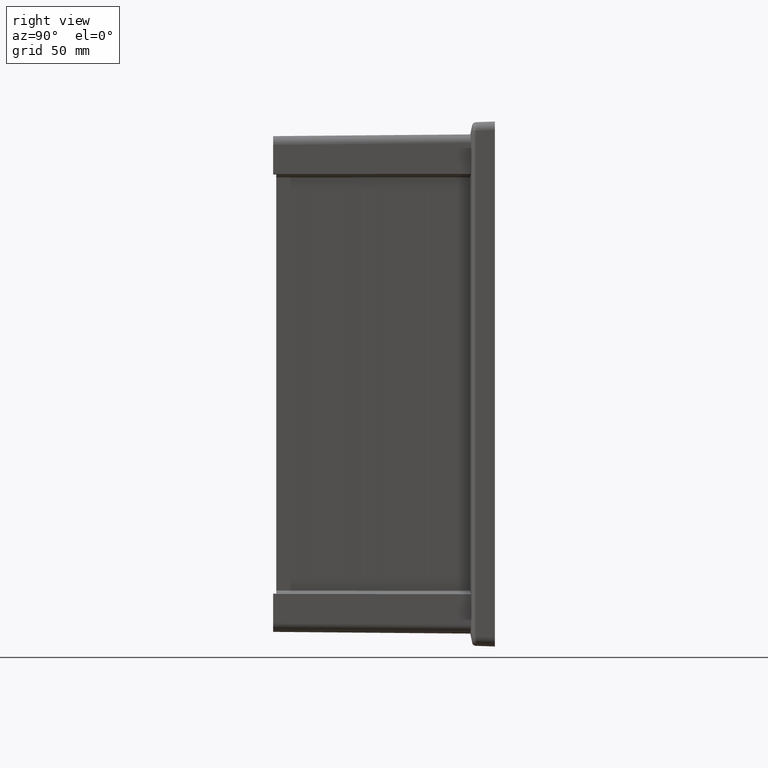
[diagram: clean part render]
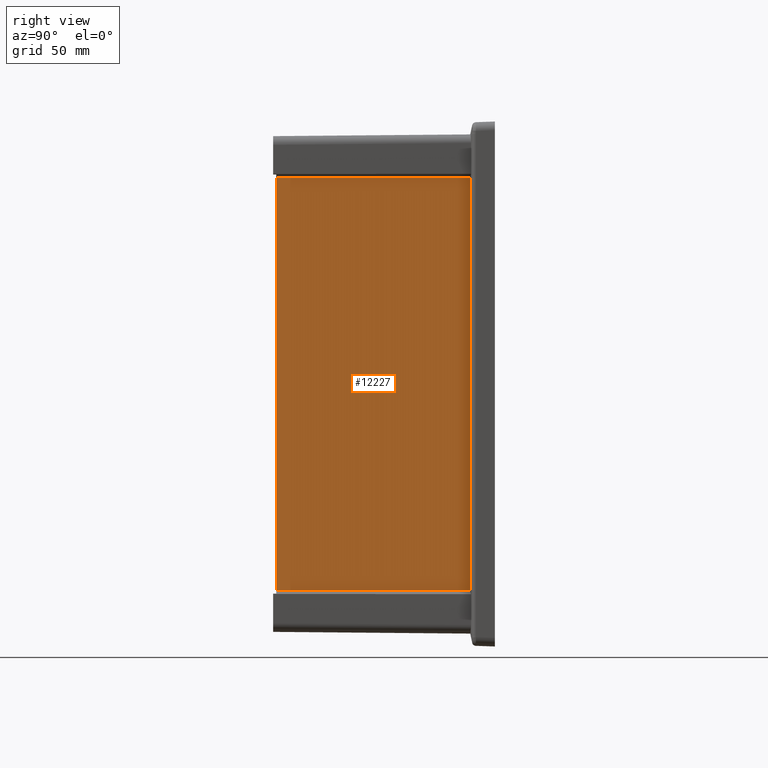
[diagram: same view with one face highlighted and labeled with its STEP entity id]
A machine part, right view. The second image highlights one B-rep face of the part: STEP entity #12227.
In plain terms, the highlighted planar face has unit normal (1, -0.0087, -0).
Its self-contained STEP definition (entity closure, byte-faithful):
#3159 = CARTESIAN_POINT ( 'NONE',  ( 130.9515572080079600, -15.70534670267410400, -130.9032146358694000 ) ) ;
#3160 = DIRECTION ( 'NONE',  ( 8.962543548058904900E-017, 1.905047440393214900E-017, 1.000000000000000000 ) ) ;
#3161 = VECTOR ( 'NONE', #3160, 1000.000000000000000 ) ;
#3162 = CARTESIAN_POINT ( 'NONE',  ( 130.9515572080079600, -15.70534670267410400, -156.0000000000000000 ) ) ;
#3163 = LINE ( 'NONE', #3162, #3161 ) ;
#3164 = CARTESIAN_POINT ( 'NONE',  ( 130.9515572080079800, -15.70534670267409700, 130.9064317102757100 ) ) ;
#3412 = DIRECTION ( 'NONE',  ( 0.008726531827788399500, 0.9999615024563482900, 0.0009171954542836336000 ) ) ;
#3413 = VECTOR ( 'NONE', #3412, 999.9999999999998900 ) ;
#3414 = CARTESIAN_POINT ( 'NONE',  ( 130.9492608274845200, -15.96848584704280900, 130.9061903509569300 ) ) ;
#3415 = LINE ( 'NONE', #3414, #3413 ) ;
#3416 = DIRECTION ( 'NONE',  ( 0.008726535498377261900, 0.9999619230641712000, 0.0000000000000000000 ) ) ;
#3417 = DIRECTION ( 'NONE',  ( 0.9999619230641713100, -0.008726535498377263600, -8.945577817748681000E-017 ) ) ;
#3418 = CARTESIAN_POINT ( 'NONE',  ( 130.9515572080079600, -15.70534670267410400, -156.0000000000000000 ) ) ;
#3419 = AXIS2_PLACEMENT_3D ( 'NONE', #3418, #3417, #3416 ) ;
#3420 = PLANE ( 'NONE',  #3419 ) ;
#3421 = FACE_OUTER_BOUND ( 'NONE', #12228, .T. ) ;
#3470 = DIRECTION ( 'NONE',  ( -0.008726531827788399500, -0.9999615024563482900, 0.0009171954542836153800 ) ) ;
#3471 = VECTOR ( 'NONE', #3470, 999.9999999999998900 ) ;
#3472 = CARTESIAN_POINT ( 'NONE',  ( 130.9517580810548600, -15.68232893138276100, -130.9032357484773900 ) ) ;
#3473 = LINE ( 'NONE', #3472, #3471 ) ;
#9155 = VERTEX_POINT ( 'NONE', #15994 ) ;
#9157 = EDGE_CURVE ( 'NONE', #9155, #9158, #15993, .T. ) ;
#9158 = VERTEX_POINT ( 'NONE', #15989 ) ;
#12053 = VERTEX_POINT ( 'NONE', #3164 ) ;
#12055 = EDGE_CURVE ( 'NONE', #12056, #12053, #3163, .T. ) ;
#12056 = VERTEX_POINT ( 'NONE', #3159 ) ;
#12227 = ADVANCED_FACE ( 'NONE', ( #3421 ), #3420, .T. ) ;
#12228 = EDGE_LOOP ( 'NONE', ( #12229, #12231, #12232, #12234 ) ) ;
#12229 = ORIENTED_EDGE ( 'NONE', *, *, #12230, .F. ) ;
#12230 = EDGE_CURVE ( 'NONE', #9158, #12053, #3415, .T. ) ;
#12231 = ORIENTED_EDGE ( 'NONE', *, *, #9157, .F. ) ;
#12232 = ORIENTED_EDGE ( 'NONE', *, *, #12233, .F. ) ;
#12233 = EDGE_CURVE ( 'NONE', #12056, #9155, #3473, .T. ) ;
#12234 = ORIENTED_EDGE ( 'NONE', *, *, #12055, .T. ) ;
#15989 = CARTESIAN_POINT ( 'NONE',  ( 129.8799445032697700, -138.5000000000000000, 130.7938006764429400 ) ) ;
#15990 = DIRECTION ( 'NONE',  ( 8.945918450911463900E-017, 0.0000000000000000000, 1.000000000000000000 ) ) ;
#15991 = VECTOR ( 'NONE', #15990, 1000.000000000000000 ) ;
#15992 = CARTESIAN_POINT ( 'NONE',  ( 129.8799445032697400, -138.5000000000000000, -156.0000000000000000 ) ) ;
#15993 = LINE ( 'NONE', #15992, #15991 ) ;
#15994 = CARTESIAN_POINT ( 'NONE',  ( 129.8799445032697400, -138.5000000000000000, -130.7905836020366300 ) ) ;